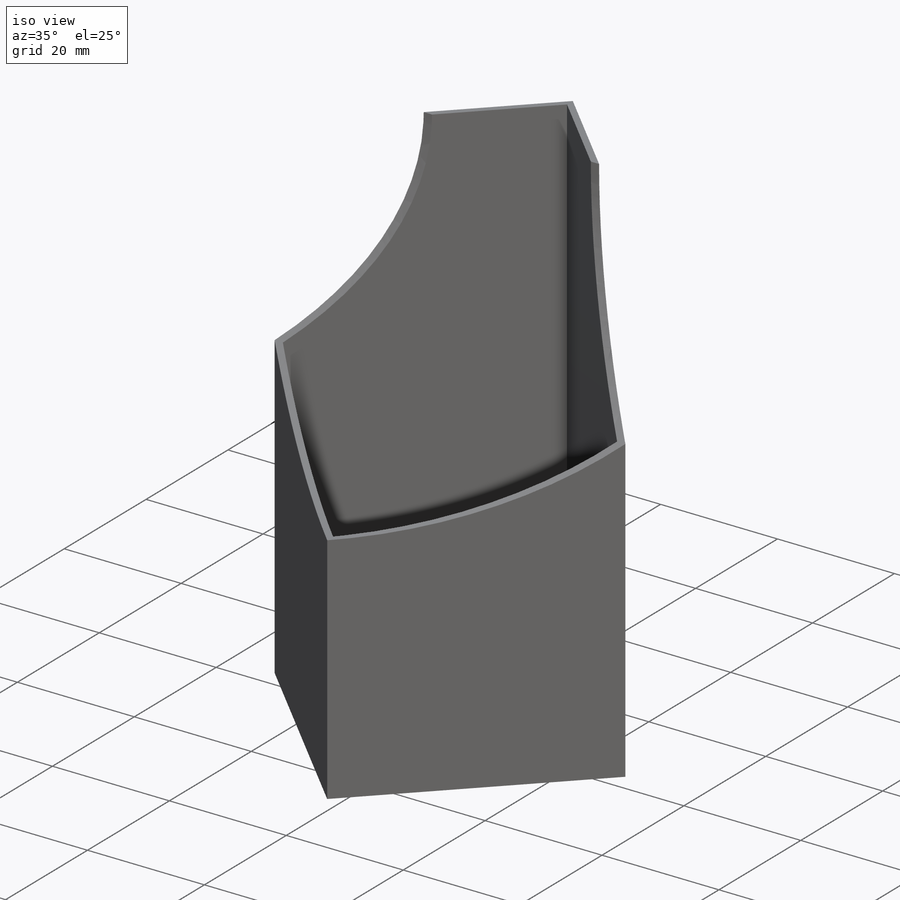
[diagram: iso view]
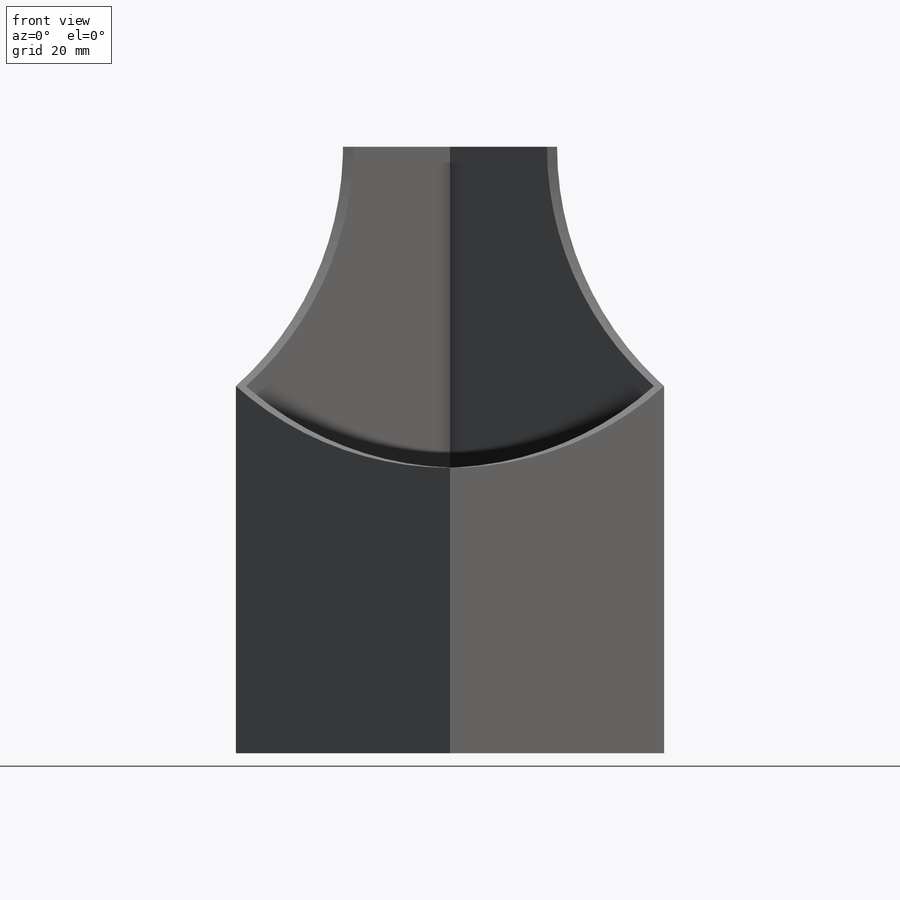
[diagram: front view]
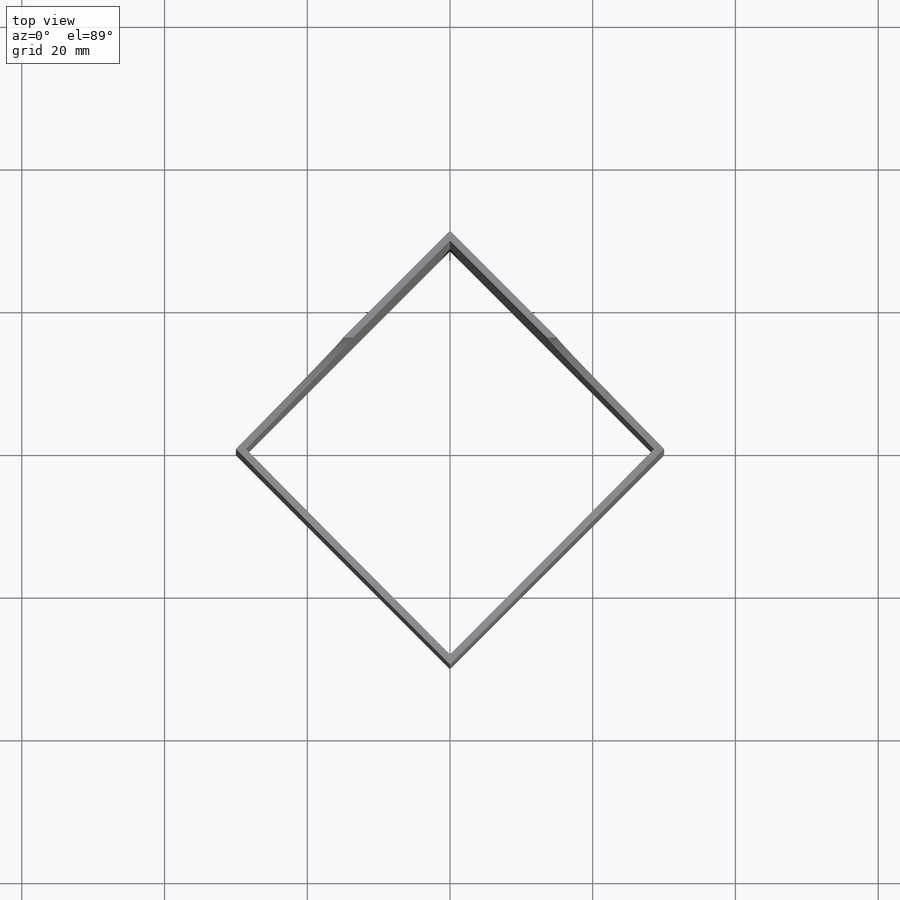
[diagram: top view]
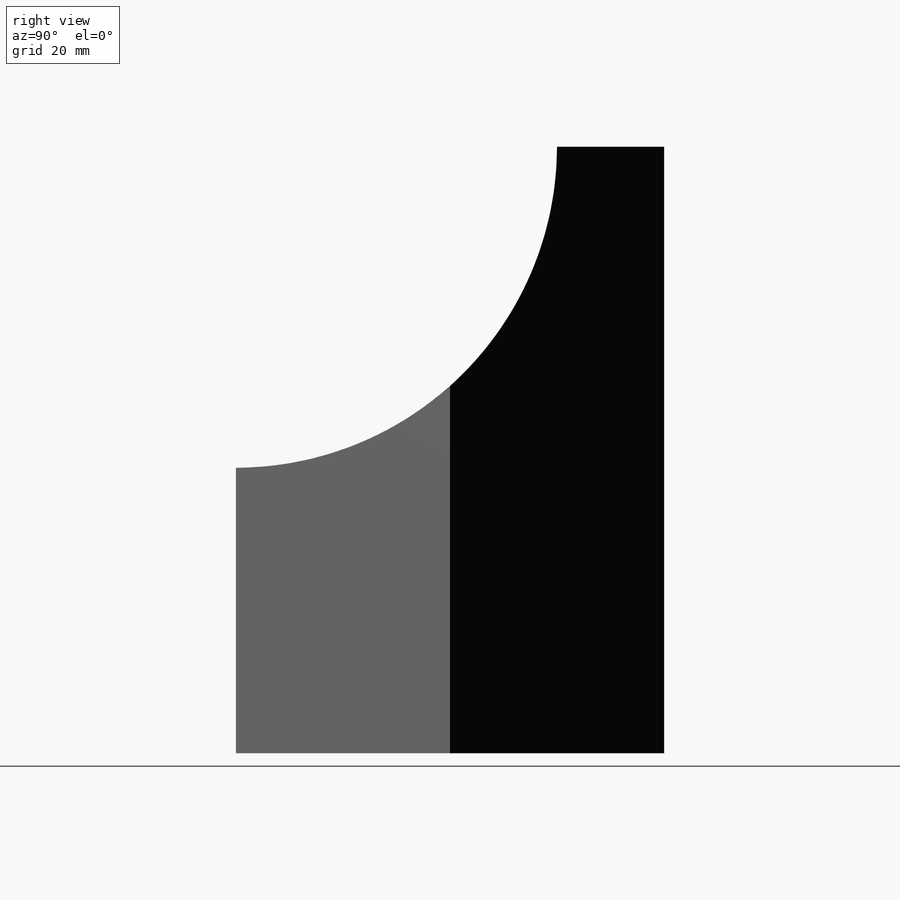
[diagram: right view]
SOLIDWORKS PART (.sldprt)
format: sldprt  version: not decoded by parser v0  size: 283,648 bytes
history: native  units: mm
features: sketch x2, material x1, extrude x1, shell x1, cut_extrude x1 (+14 scaffold rows collapsed)
feature tree (20):
  scaffold x14  (default folders/planes/origin — collapsed)
  material  "Material <not specified>"
  sketch  "Sketch1"  dims[D1=~44.349206mm]
  extrude  "Extrude1"  Depth=85mm
  shell  "Shell1"  Thickness=1mm
  sketch  "Sketch3"  dims[D1=~41.620131mm]
  cut_extrude  "Cut-Extrude1"  Depth=60mm
decode coverage: 5 of 5 modeling features carry decoded parameters
note: ~ marks probable driven/reference dimensions
note: suppression state not decoded; provenance and decode notes live in map.json
